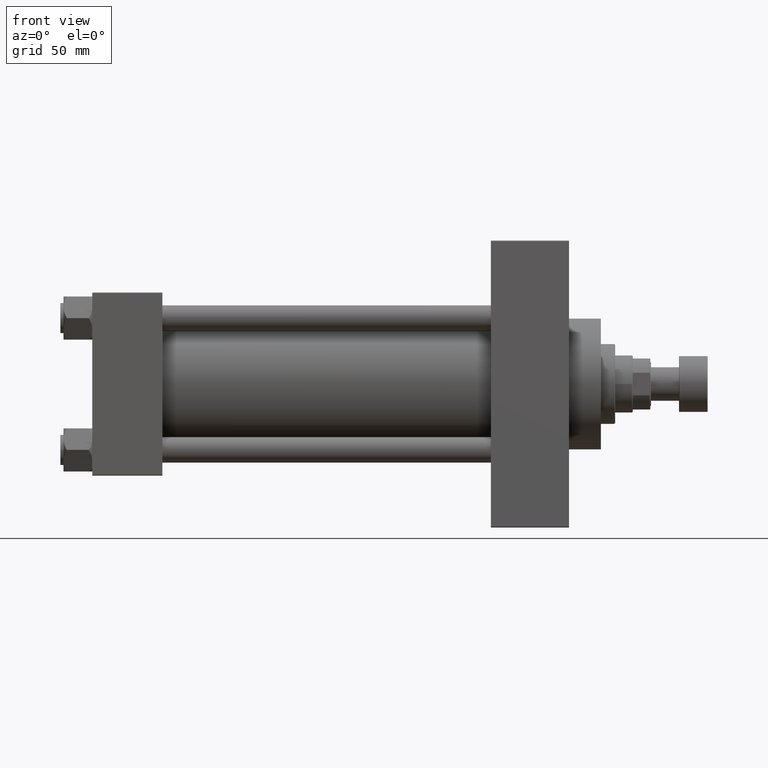
[diagram: clean part render]
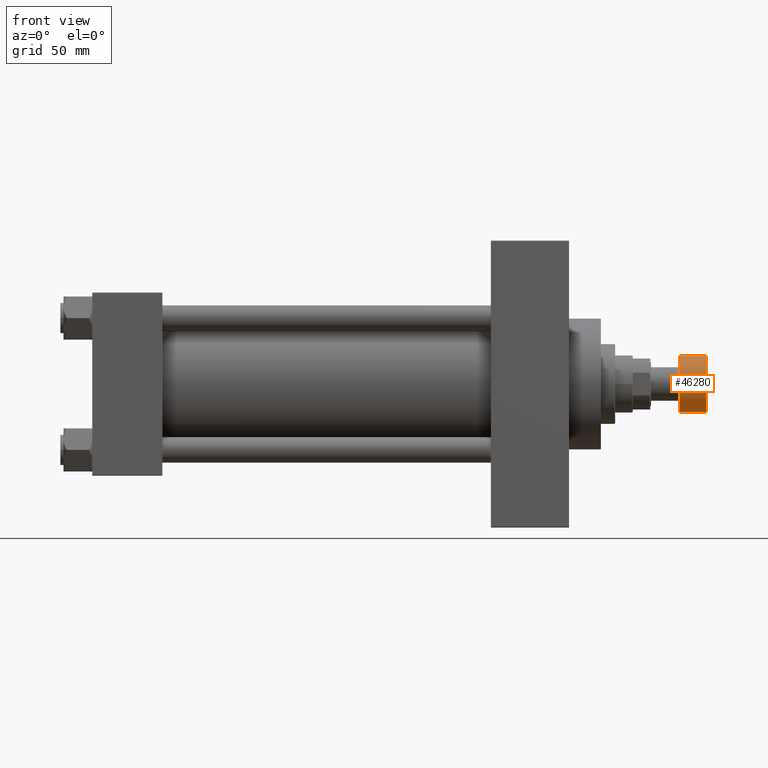
[diagram: same view with one face highlighted and labeled with its STEP entity id]
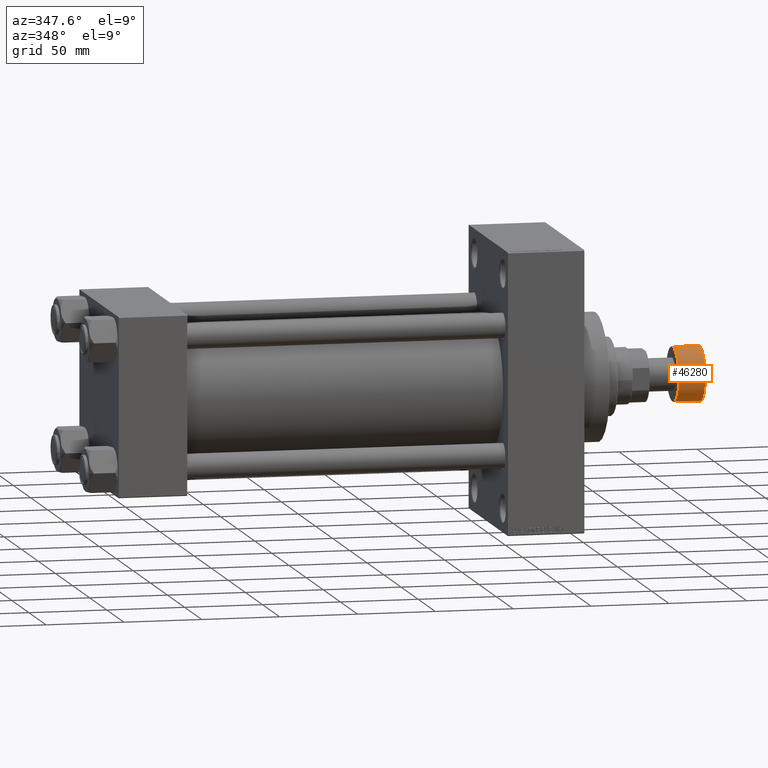
[diagram: same view with one face highlighted and labeled with its STEP entity id]
A machine part, front view. The second image highlights one B-rep face of the part: STEP entity #46280.
A second angle (auxiliary view) of the same face is appended — the face is thin or edge-on in the first view.
In plain terms, the highlighted cylindrical surface (edge-blend (fillet) strip) has radius 17.5 mm, axis along (1, 0, 0).
Its self-contained STEP definition (entity closure, byte-faithful):
#299 = CYLINDRICAL_SURFACE ( 'NONE', #5897, 17.50000000000000355 ) ;
#706 = DIRECTION ( 'NONE',  ( -0.000000000000000000, -0.000000000000000000, -1.000000000000000000 ) ) ;
#1194 = CARTESIAN_POINT ( 'NONE',  ( 0.000000000000000000, 0.000000000000000000, -0.5000000000000004441 ) ) ;
#3024 = EDGE_CURVE ( 'NONE', #10221, #40311, #8028, .T. ) ;
#3219 = CARTESIAN_POINT ( 'NONE',  ( 0.000000000000000000, 0.000000000000000000, -17.49999999999999645 ) ) ;
#3765 = CARTESIAN_POINT ( 'NONE',  ( 17.50000000000000355, 0.000000000000000000, -0.5000000000000004441 ) ) ;
#3880 = CARTESIAN_POINT ( 'NONE',  ( -17.50000000000000355, 2.143131898507868643E-15, -18.00000000000000000 ) ) ;
#5221 = CARTESIAN_POINT ( 'NONE',  ( 17.50000000000000355, 0.000000000000000000, -18.00000000000000000 ) ) ;
#5897 = AXIS2_PLACEMENT_3D ( 'NONE', #22744, #45038, #26434 ) ;
#6099 = EDGE_LOOP ( 'NONE', ( #39249, #40631, #36186, #10957 ) ) ;
#8028 = LINE ( 'NONE', #3880, #29642 ) ;
#8403 = DIRECTION ( 'NONE',  ( 0.000000000000000000, 0.000000000000000000, 1.000000000000000000 ) ) ;
#10221 = VERTEX_POINT ( 'NONE', #21813 ) ;
#10957 = ORIENTED_EDGE ( 'NONE', *, *, #25604, .T. ) ;
#16005 = VERTEX_POINT ( 'NONE', #3765 ) ;
#16679 = AXIS2_PLACEMENT_3D ( 'NONE', #3219, #36258, #28659 ) ;
#17373 = CARTESIAN_POINT ( 'NONE',  ( 17.50000000000000355, 0.000000000000000000, -17.49999999999999645 ) ) ;
#21354 = VECTOR ( 'NONE', #8403, 1000.000000000000000 ) ;
#21813 = CARTESIAN_POINT ( 'NONE',  ( -17.50000000000000355, 2.143131898507868643E-15, -17.49999999999999645 ) ) ;
#22675 = DIRECTION ( 'NONE',  ( 0.000000000000000000, 0.000000000000000000, 1.000000000000000000 ) ) ;
#22744 = CARTESIAN_POINT ( 'NONE',  ( 0.000000000000000000, 0.000000000000000000, -18.00000000000000000 ) ) ;
#25604 = EDGE_CURVE ( 'NONE', #16005, #40311, #40801, .T. ) ;
#26434 = DIRECTION ( 'NONE',  ( 1.000000000000000000, 0.000000000000000000, 0.000000000000000000 ) ) ;
#27165 = EDGE_CURVE ( 'NONE', #44292, #16005, #38244, .T. ) ;
#28659 = DIRECTION ( 'NONE',  ( 1.000000000000000000, 0.000000000000000000, 0.000000000000000000 ) ) ;
#29064 = EDGE_CURVE ( 'NONE', #10221, #44292, #37670, .T. ) ;
#29642 = VECTOR ( 'NONE', #22675, 1000.000000000000000 ) ;
#33779 = FACE_OUTER_BOUND ( 'NONE', #6099, .T. ) ;
#36186 = ORIENTED_EDGE ( 'NONE', *, *, #27165, .T. ) ;
#36258 = DIRECTION ( 'NONE',  ( 0.000000000000000000, 0.000000000000000000, 1.000000000000000000 ) ) ;
#37670 = CIRCLE ( 'NONE', #16679, 17.50000000000000355 ) ;
#38244 = LINE ( 'NONE', #5221, #21354 ) ;
#38516 = CARTESIAN_POINT ( 'NONE',  ( -17.50000000000000355, 2.143131898507868643E-15, -0.5000000000000004441 ) ) ;
#39249 = ORIENTED_EDGE ( 'NONE', *, *, #3024, .F. ) ;
#39262 = AXIS2_PLACEMENT_3D ( 'NONE', #1194, #706, #45698 ) ;
#40311 = VERTEX_POINT ( 'NONE', #38516 ) ;
#40631 = ORIENTED_EDGE ( 'NONE', *, *, #29064, .T. ) ;
#40801 = CIRCLE ( 'NONE', #39262, 17.50000000000000355 ) ;
#44292 = VERTEX_POINT ( 'NONE', #17373 ) ;
#45038 = DIRECTION ( 'NONE',  ( 0.000000000000000000, 0.000000000000000000, 1.000000000000000000 ) ) ;
#45698 = DIRECTION ( 'NONE',  ( 1.000000000000000000, 0.000000000000000000, 0.000000000000000000 ) ) ;
#46280 = ADVANCED_FACE ( 'NONE', ( #33779 ), #299, .T. ) ;